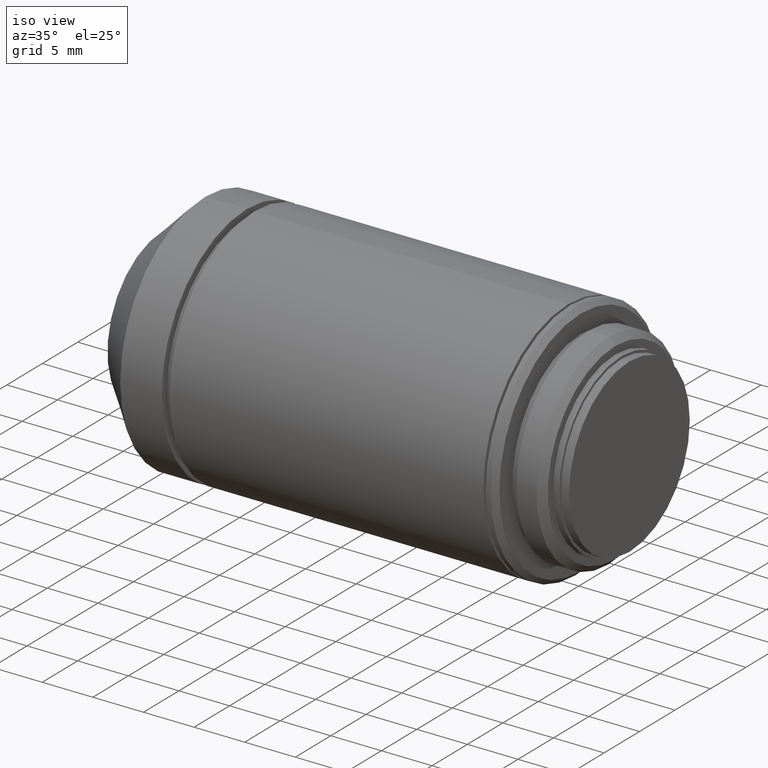
[diagram: clean part render]
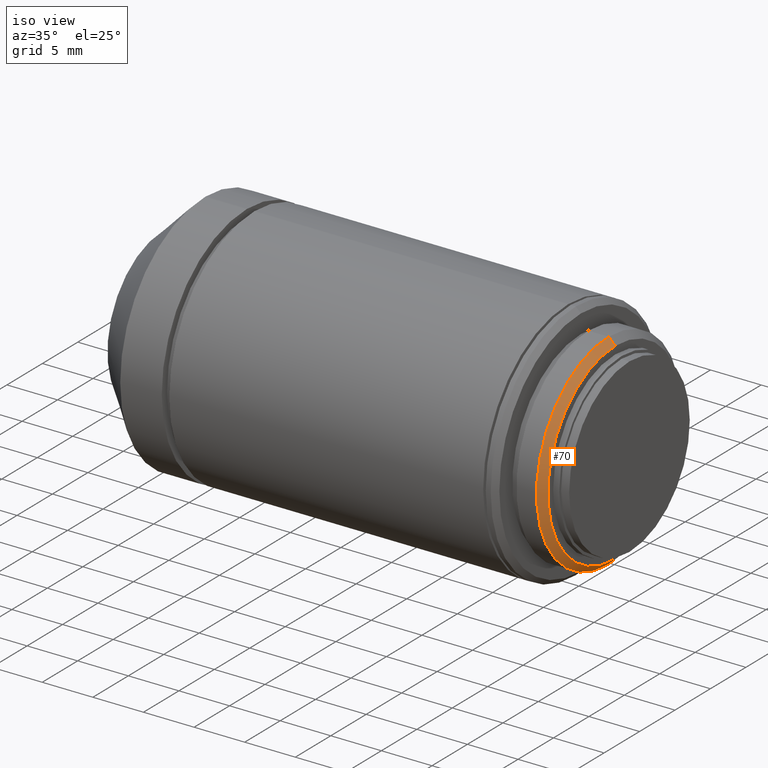
[diagram: same view with one face highlighted and labeled with its STEP entity id]
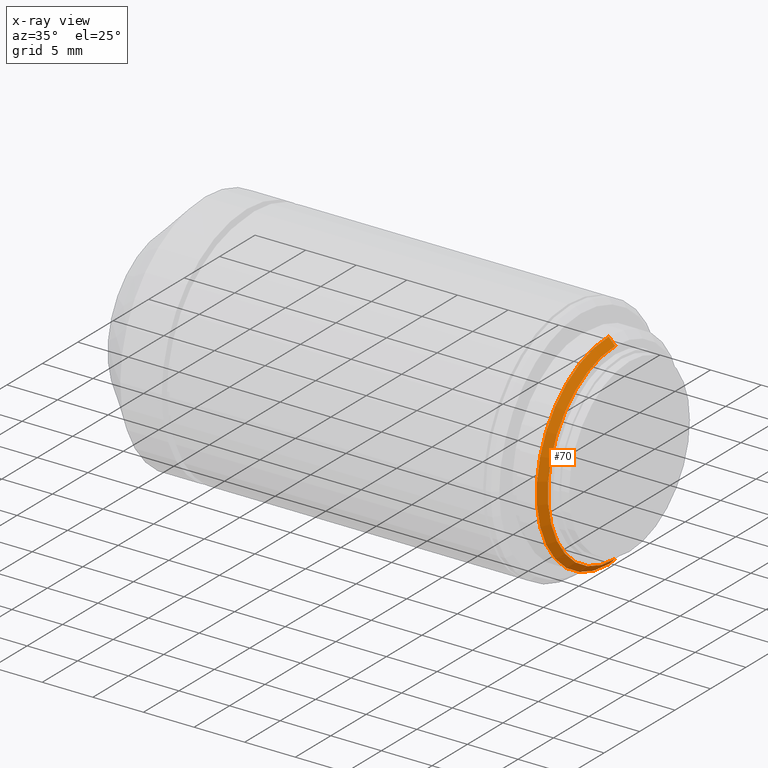
[diagram: x-ray of the same camera — body ghosted, the highlighted face saturated]
A machine part, iso view. The second image highlights one B-rep face of the part: STEP entity #70.
The next image is the same camera in x-ray: the body ghosted, the highlighted face saturated — about 0% of this face is hidden behind the body in this view.
In plain terms, the highlighted conical surface has half-angle 45 deg.
Its self-contained STEP definition (entity closure, byte-faithful):
#7 = DIRECTION ( 'NONE',  ( 1.000000000000000000, 0.000000000000000000, 0.000000000000000000 ) ) ;
#35 = CARTESIAN_POINT ( 'NONE',  ( -1.399999999999999911, 1.164639105989131874E-15, -9.509999999999999787 ) ) ;
#70 = ADVANCED_FACE ( 'NONE', ( #950 ), #1048, .T. ) ;
#119 = DIRECTION ( 'NONE',  ( 1.000000000000000000, 0.000000000000000000, 0.000000000000000000 ) ) ;
#131 = DIRECTION ( 'NONE',  ( -0.7071067811865460184, 8.659560562354948882E-17, -0.7071067811865489050 ) ) ;
#140 = ORIENTED_EDGE ( 'NONE', *, *, #200, .F. ) ;
#197 = CARTESIAN_POINT ( 'NONE',  ( -1.399999999999999911, 0.000000000000000000, 0.000000000000000000 ) ) ;
#200 = EDGE_CURVE ( 'NONE', #410, #463, #285, .T. ) ;
#210 = CARTESIAN_POINT ( 'NONE',  ( -2.050000000000000266, 0.000000000000000000, 10.16000000000000014 ) ) ;
#234 = CARTESIAN_POINT ( 'NONE',  ( -1.399999999999999911, 1.204440126961421862E-15, -9.509999999999999787 ) ) ;
#248 = AXIS2_PLACEMENT_3D ( 'NONE', #1021, #7, #780 ) ;
#285 = LINE ( 'NONE', #35, #879 ) ;
#318 = ORIENTED_EDGE ( 'NONE', *, *, #565, .T. ) ;
#366 = DIRECTION ( 'NONE',  ( -0.7071067811865460184, 0.000000000000000000, 0.7071067811865489050 ) ) ;
#392 = EDGE_LOOP ( 'NONE', ( #140, #1064, #318, #584 ) ) ;
#410 = VERTEX_POINT ( 'NONE', #234 ) ;
#446 = CARTESIAN_POINT ( 'NONE',  ( -1.399999999999999911, 0.000000000000000000, 9.509999999999999787 ) ) ;
#463 = VERTEX_POINT ( 'NONE', #1022 ) ;
#504 = AXIS2_PLACEMENT_3D ( 'NONE', #197, #607, #947 ) ;
#513 = VERTEX_POINT ( 'NONE', #686 ) ;
#565 = EDGE_CURVE ( 'NONE', #513, #669, #861, .T. ) ;
#584 = ORIENTED_EDGE ( 'NONE', *, *, #700, .T. ) ;
#607 = DIRECTION ( 'NONE',  ( -1.000000000000000000, 0.000000000000000000, 0.000000000000000000 ) ) ;
#669 = VERTEX_POINT ( 'NONE', #210 ) ;
#686 = CARTESIAN_POINT ( 'NONE',  ( -1.399999999999999911, 0.000000000000000000, 9.509999999999999787 ) ) ;
#700 = EDGE_CURVE ( 'NONE', #669, #463, #1042, .T. ) ;
#780 = DIRECTION ( 'NONE',  ( 0.000000000000000000, 0.000000000000000000, -1.000000000000000000 ) ) ;
#791 = DIRECTION ( 'NONE',  ( 0.000000000000000000, 0.000000000000000000, -1.000000000000000000 ) ) ;
#834 = CIRCLE ( 'NONE', #248, 9.509999999999999787 ) ;
#861 = LINE ( 'NONE', #446, #899 ) ;
#879 = VECTOR ( 'NONE', #131, 1000.000000000000114 ) ;
#881 = AXIS2_PLACEMENT_3D ( 'NONE', #961, #119, #791 ) ;
#899 = VECTOR ( 'NONE', #366, 1000.000000000000114 ) ;
#947 = DIRECTION ( 'NONE',  ( 0.000000000000000000, 0.000000000000000000, 1.000000000000000000 ) ) ;
#950 = FACE_OUTER_BOUND ( 'NONE', #392, .T. ) ;
#961 = CARTESIAN_POINT ( 'NONE',  ( -2.050000000000000266, 0.000000000000000000, 0.000000000000000000 ) ) ;
#982 = EDGE_CURVE ( 'NONE', #513, #410, #834, .T. ) ;
#1021 = CARTESIAN_POINT ( 'NONE',  ( -1.399999999999999911, 0.000000000000000000, 0.000000000000000000 ) ) ;
#1022 = CARTESIAN_POINT ( 'NONE',  ( -2.050000000000000266, 1.244241147933709878E-15, -10.16000000000000014 ) ) ;
#1042 = CIRCLE ( 'NONE', #881, 10.16000000000000014 ) ;
#1048 = CONICAL_SURFACE ( 'NONE', #504, 9.509999999999999787, 0.7853981633974503884 ) ;
#1064 = ORIENTED_EDGE ( 'NONE', *, *, #982, .F. ) ;